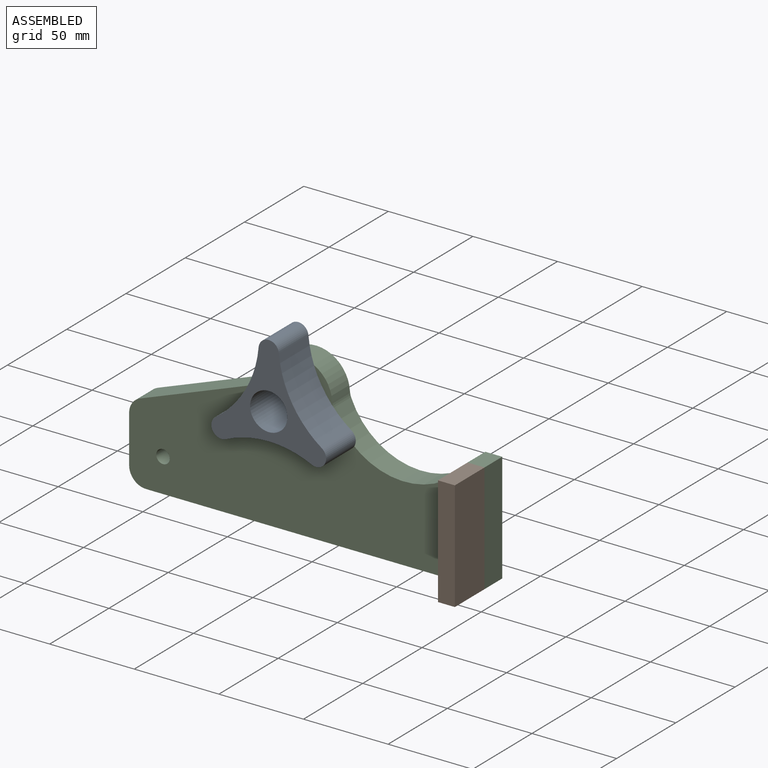
[diagram: assembled view]
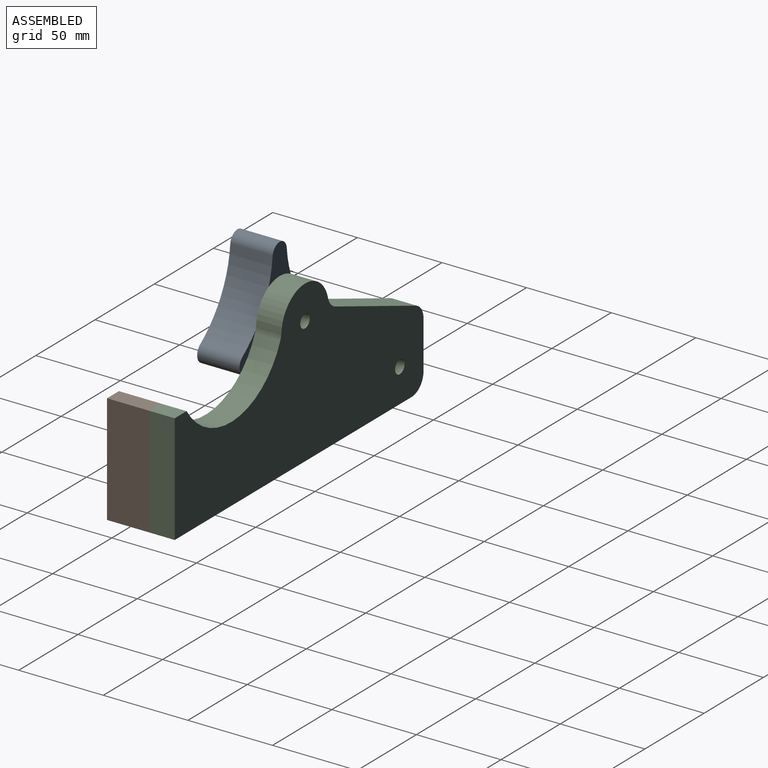
[diagram: assembled view, second angle]
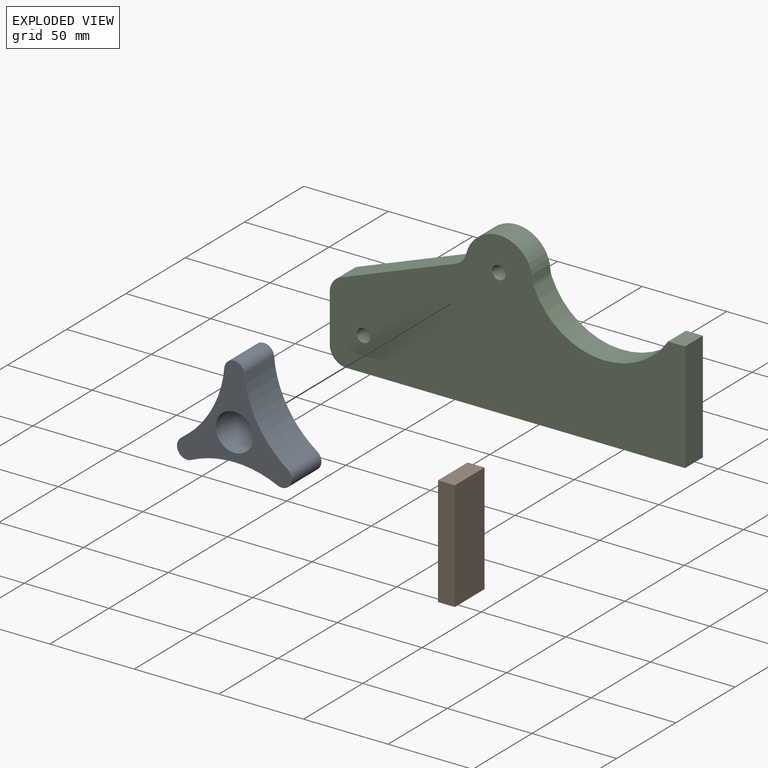
[diagram: exploded view]
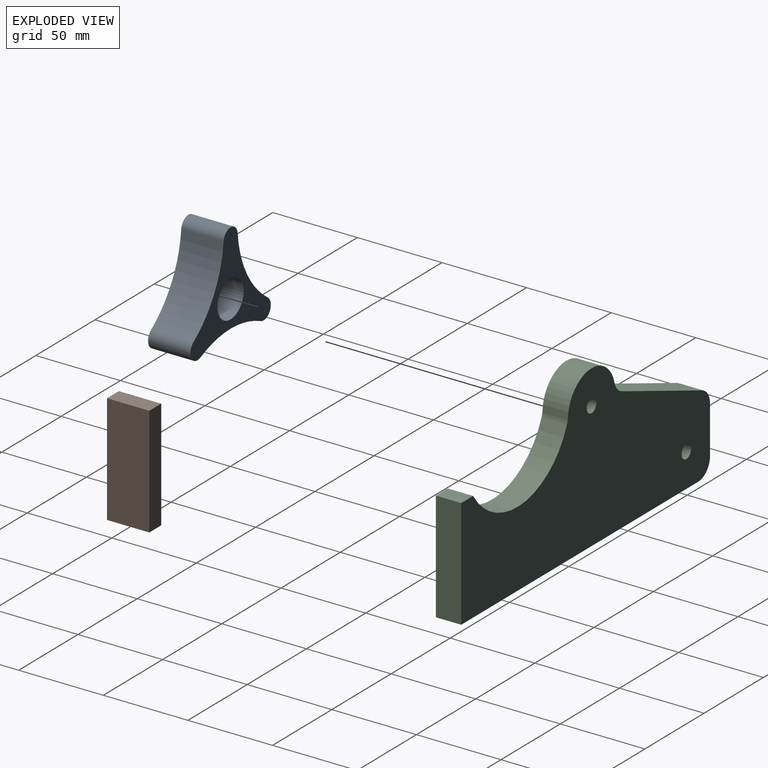
[diagram: exploded view, second angle]
ASSEMBLY  parts=3 mates=2
PART A: 9 faces, bbox 67.9x25x60.4 mm
  f0: cylinder r=60mm len=43.98mm, axis (0,1,0), area 1310.8mm2, adj f1,f5,f7,f8
  f1: cylinder r=6mm len=25mm, axis (0,1,0), area 445.2mm2, adj f0,f2,f7,f8
  f2: cylinder r=60mm len=50.78mm, axis (0,1,0), area 1310.8mm2, adj f1,f3,f7,f8
  f3: cylinder r=6mm len=25mm, axis (0,1,0), area 445.2mm2, adj f2,f4,f7,f8
  f4: cylinder r=60mm len=43.98mm, axis (0,1,0), area 1310.8mm2, adj f3,f5,f7,f8
  f5: cylinder r=6mm len=25mm, axis (0,1,0), area 445.2mm2, adj f0,f4,f7,f8
  f6: cylinder r=11mm len=25mm, axis (0,1,0), area 1727.9mm2, adj f7,f8
  f7: plane 67.86x60.38mm, normal (0,-1,0), area 1422.7mm2, adj f0,f1,f2,f3,f4,f5,f6
  f8: plane 67.86x60.38mm, normal (0,1,0), area 1422.7mm2, adj f0,f1,f2,f3,f4,f5,f6
PART B: 6 faces, bbox 10x25x65 mm
  f0: plane 65x25mm, normal (-1,0,0), area 1625mm2, adj f1,f3,f4,f5
  f1: plane 25x10mm, normal (0,0,-1), area 250mm2, adj f0,f2,f4,f5
  f2: plane 65x25mm, normal (1,0,0), area 1625mm2, adj f1,f3,f4,f5
  f3: plane 25x10mm, normal (0,0,1), area 250mm2, adj f0,f2,f4,f5
  f4: plane 65x10mm, normal (0,-1,0), area 650mm2, adj f0,f1,f2,f3
  f5: plane 65x10mm, normal (0,1,0), area 650mm2, adj f0,f1,f2,f3
PART C: 15 faces, bbox 210x15x95 mm
  f0: plane 28.07x15mm, normal (-1,0,0), area 421mm2, adj f9,f10,f11,f12
  f1: plane 200x15mm, normal (0,0,-1), area 3000mm2, adj f2,f9,f10,f11
  f2: plane 65x15mm, normal (1,0,0), area 975mm2, adj f1,f3,f9,f10
  f3: plane 15x10mm, normal (0,0,1), area 150mm2, adj f2,f4,f9,f10
  f4: cylinder r=45mm len=79.32mm, axis (0,1,0), area 1468.8mm2, adj f3,f9,f10,f14
  f5: cylinder r=20mm len=39.37mm, axis (0,1,0), area 852.6mm2, adj f9,f10,f13,f14
  f6: plane 67.92x25.47mm, normal (-0.35,0,0.94), area 1088mm2, adj f9,f10,f12,f13
  f7: cylinder r=4mm len=15mm, axis (0,1,0), area 377mm2, adj f9,f10
  f8: cylinder r=4mm len=15mm, axis (0,1,0), area 377mm2, adj f9,f10
  f9: plane 210x95mm, normal (0,-1,0), area 13102.1mm2, adj f0,f1,f2,f3,f4,f5,f6,f7
  f10: plane 210x95mm, normal (0,1,0), area 13102.1mm2, adj f0,f1,f2,f3,f4,f5,f6,f7
  f11: cylinder r=10mm len=15mm, axis (0,-1,0), area 235.6mm2, adj f0,f1,f9,f10
  f12: cylinder r=10mm len=15mm, axis (0,-1,0), area 181.8mm2, adj f0,f6,f9,f10
  f13: cylinder r=10mm len=15mm, axis (0,1,0), area 145.1mm2, adj f5,f6,f9,f10
  f14: cylinder r=10mm len=15mm, axis (0,1,0), area 49.3mm2, adj f4,f5,f9,f10
PLACE A t=(30.88,15.79,-29.87)mm
PLACE B t=(130.88,15.79,-104.87)mm
PLACE C t=(-69.12,30.79,-104.87)mm
MATE fastened B.f5 <-> C.f9  axis (0,1,0) through (140.88,15.79,-39.87)mm
MATE fastened C.f5 <-> A.f6  axis (0,-1,0) through (30.88,15.79,-29.87)mm
